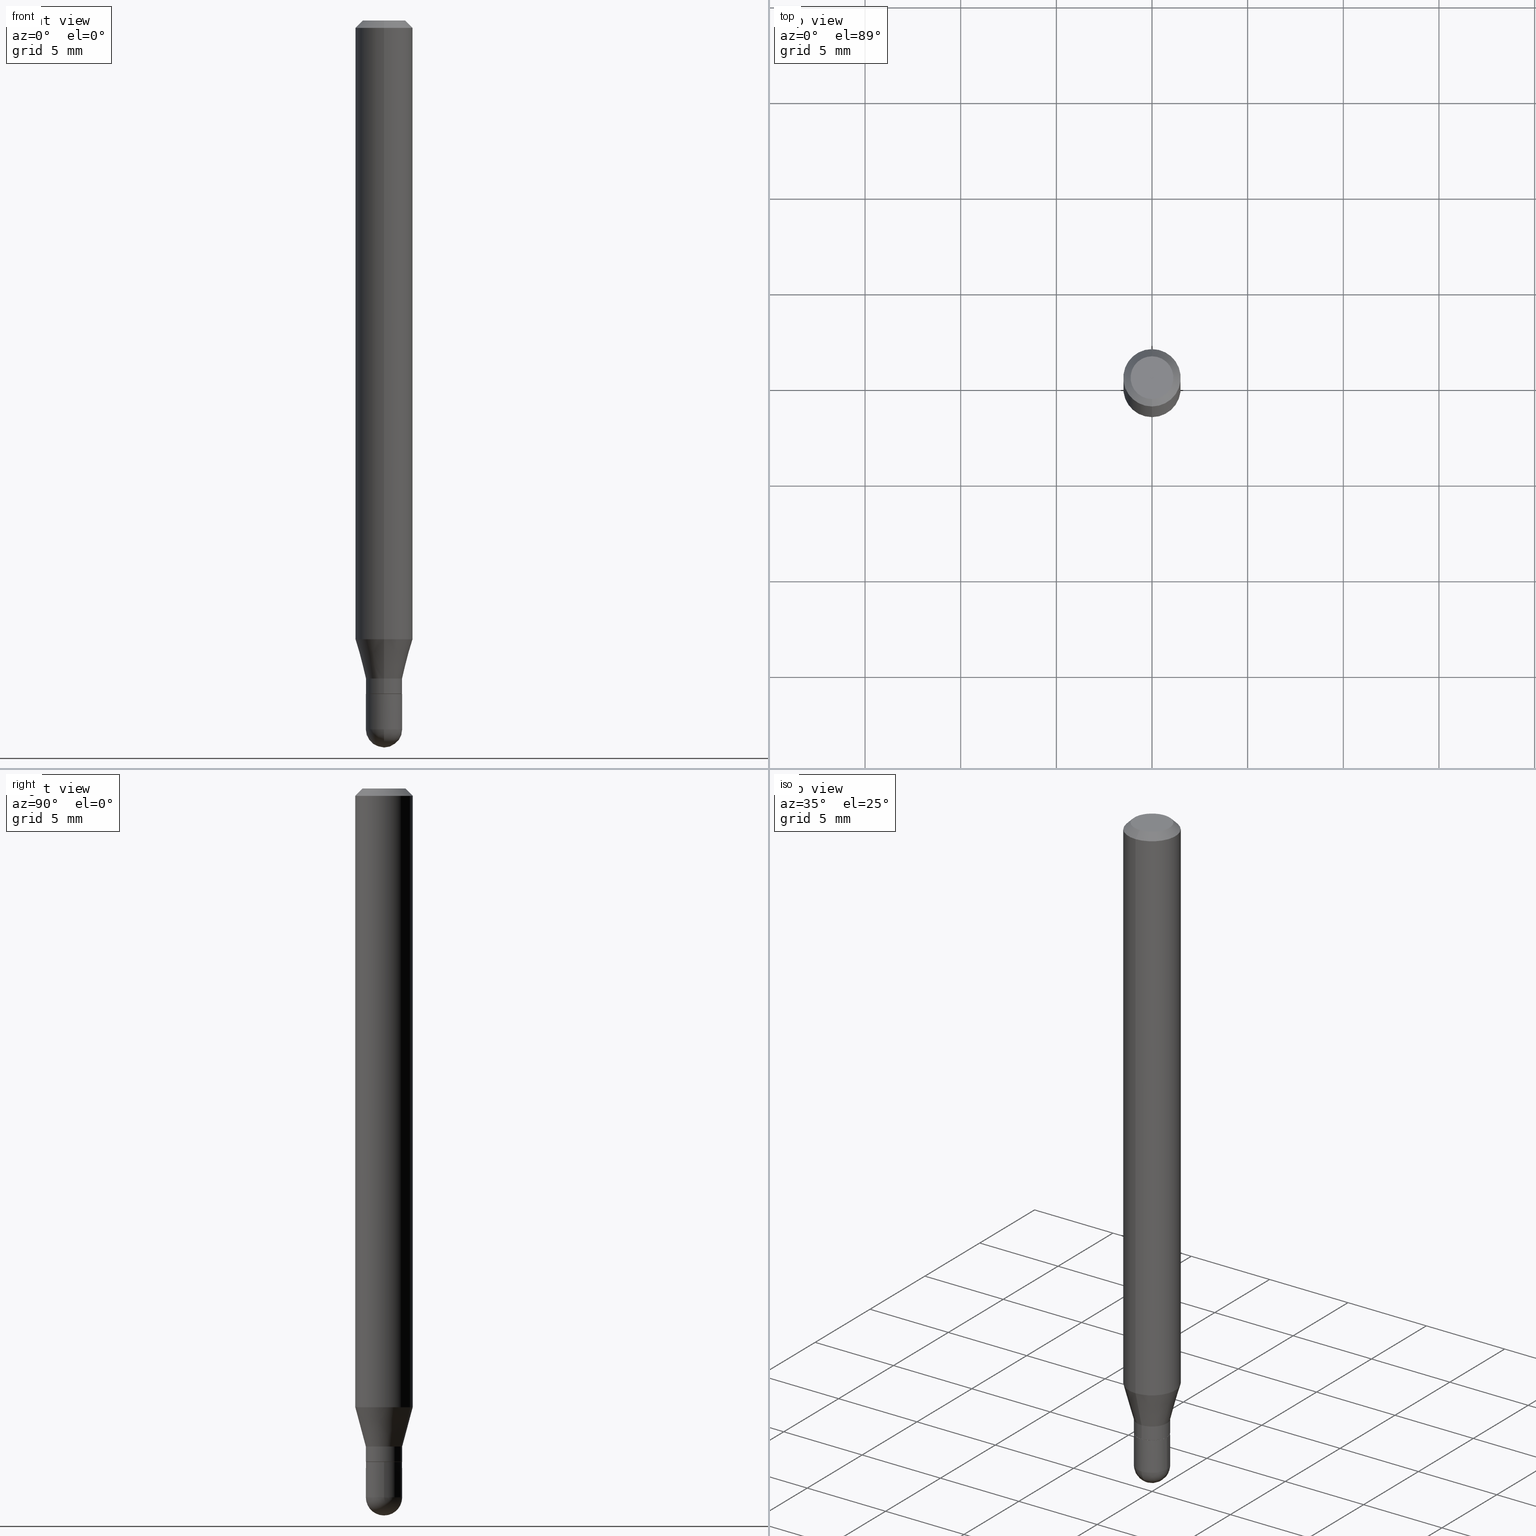
[diagram: canonical four-view strip — front | top / right | iso, engineering-drawing reading convention]
A machine part, canonical four-view strip (front | top / right | iso — engineering-drawing reading convention). The complete STEP part file that produces these views, byte-faithful:
ISO-10303-21;
HEADER;
FILE_DESCRIPTION (( 'STEP AP203' ),
    '1' );
FILE_NAME ('01936.STEP',
    '2024-03-07T19:46:04',
    ( '' ),
    ( '' ),
    'SwSTEP 2.0',
    'SolidWorks 2023',
    '' );
FILE_SCHEMA (( 'CONFIG_CONTROL_DESIGN' ));
ENDSEC;

DATA;
#1 = LINE ( 'NONE', #42, #32 ) ;
#2 = CC_DESIGN_PERSON_AND_ORGANIZATION_ASSIGNMENT ( #278, #426, ( #113 ) ) ;
#3 = DIRECTION ( 'NONE',  ( -2.445517740109687553E-29, 3.491411262678042591E-15, 1.000000000000000000 ) ) ;
#4 = CLOSED_SHELL ( 'NONE', ( #178, #386, #133, #410, #415 ) ) ;
#5 = CARTESIAN_POINT ( 'NONE',  ( 3.668276610164536795E-31, -5.237116894017072934E-17, -0.01500000000000002373 ) ) ;
#6 = CIRCLE ( 'NONE', #173, 0.03740000000000000269 ) ;
#7 = ORIENTED_EDGE ( 'NONE', *, *, #140, .F. ) ;
#8 = DIRECTION ( 'NONE',  ( -2.445517740109687273E-29, 3.491411262678042985E-15, 1.000000000000000000 ) ) ;
#9 = ORIENTED_EDGE ( 'NONE', *, *, #107, .F. ) ;
#10 = EDGE_LOOP ( 'NONE', ( #7, #200, #172, #66 ) ) ;
#11 = LINE ( 'NONE', #481, #349 ) ;
#12 = APPROVAL_DATE_TIME ( #194, #466 ) ;
#13 = ORIENTED_EDGE ( 'NONE', *, *, #463, .F. ) ;
#14 = ADVANCED_FACE ( 'NONE', ( #384 ), #387, .T. ) ;
#15 = VERTEX_POINT ( 'NONE', #29 ) ;
#16 = EDGE_CURVE ( 'NONE', #126, #35, #492, .T. ) ;
#17 = DATE_AND_TIME ( #309, #256 ) ;
#18 = ORIENTED_EDGE ( 'NONE', *, *, #209, .F. ) ;
#19 = DIRECTION ( 'NONE',  ( -2.445517740109687553E-29, 3.491411262678042591E-15, 1.000000000000000000 ) ) ;
#20 = CARTESIAN_POINT ( 'NONE',  ( 3.564007025660728008E-29, -5.097604007999306661E-15, -1.458699999999999886 ) ) ;
#21 = MANIFOLD_SOLID_BREP ( 'Body-Move/Copy2[2]', #182 ) ;
#22 = AXIS2_PLACEMENT_3D ( 'NONE', #208, #114, #398 ) ;
#23 = AXIS2_PLACEMENT_3D ( 'NONE', #414, #479, #167 ) ;
#24 = PLANE ( 'NONE',  #488 ) ;
#25 = PERSON_AND_ORGANIZATION ( #189, #411 ) ;
#26 = DIRECTION ( 'NONE',  ( -2.445517740109687553E-29, 3.491411262678042591E-15, 1.000000000000000000 ) ) ;
#27 = EDGE_CURVE ( 'NONE', #333, #447, #417, .T. ) ;
#28 = CARTESIAN_POINT ( 'NONE',  ( 3.311475571882527521E-29, -4.727719990792336860E-15, -1.354099999999999859 ) ) ;
#29 = CARTESIAN_POINT ( 'NONE',  ( -4.123439461173736383E-16, -0.05905000000000005383, -0.01499999999999981730 ) ) ;
#30 = EDGE_LOOP ( 'NONE', ( #49, #123, #116, #90 ) ) ;
#31 = CARTESIAN_POINT ( 'NONE',  ( 2.621902694955108069E-16, 0.03689999999999515889, -1.385899999999999910 ) ) ;
#32 = VECTOR ( 'NONE', #82, 39.37007874015748143 ) ;
#33 =( GEOMETRIC_REPRESENTATION_CONTEXT ( 3 ) GLOBAL_UNCERTAINTY_ASSIGNED_CONTEXT ( ( #121 ) ) GLOBAL_UNIT_ASSIGNED_CONTEXT ( ( #287, #170, #404 ) ) REPRESENTATION_CONTEXT ( 'NONE', 'WORKASPACE' ) );
#34 = EDGE_CURVE ( 'NONE', #73, #89, #192, .T. ) ;
#35 = VERTEX_POINT ( 'NONE', #143 ) ;
#36 = CARTESIAN_POINT ( 'NONE',  ( 2.611628041455002226E-16, 0.03739999999999515934, -1.385899999999999910 ) ) ;
#37 = ORIENTED_EDGE ( 'NONE', *, *, #152, .T. ) ;
#38 = CARTESIAN_POINT ( 'NONE',  ( -2.611628041454328736E-16, -0.03740000000000489461, -1.385399999999999965 ) ) ;
#39 = EDGE_CURVE ( 'NONE', #126, #268, #501, .T. ) ;
#40 = CARTESIAN_POINT ( 'NONE',  ( 0.000000000000000000, 0.000000000000000000, 0.000000000000000000 ) ) ;
#41 = EDGE_CURVE ( 'NONE', #263, #89, #394, .T. ) ;
#42 = CARTESIAN_POINT ( 'NONE',  ( -4.123439461173739834E-16, -0.05904999999999999832, 2.061678350611384219E-16 ) ) ;
#43 = DIRECTION ( 'NONE',  ( -6.982962677686265133E-15, -1.000000000000000000, 0.000000000000000000 ) ) ;
#44 = VERTEX_POINT ( 'NONE', #428 ) ;
#45 = DIRECTION ( 'NONE',  ( -6.982962677686265133E-15, -1.000000000000000000, 0.000000000000000000 ) ) ;
#46 = APPROVAL ( #233, 'UNSPECIFIED' ) ;
#47 = CIRCLE ( 'NONE', #510, 0.03739999999999999575 ) ;
#48 = CARTESIAN_POINT ( 'NONE',  ( -0.03740000000000000269, -4.700190925062328088E-15, -1.385899999999999910 ) ) ;
#49 = ORIENTED_EDGE ( 'NONE', *, *, #34, .F. ) ;
#50 = COORDINATED_UNIVERSAL_TIME_OFFSET ( 5, 0, .BEHIND. ) ;
#51 = VECTOR ( 'NONE', #330, 39.37007874015748143 ) ;
#52 = CIRCLE ( 'NONE', #502, 0.03739999999999986391 ) ;
#53 = EDGE_CURVE ( 'NONE', #455, #276, #99, .T. ) ;
#54 = EDGE_LOOP ( 'NONE', ( #235, #150, #449, #224 ) ) ;
#55 = DESIGN_CONTEXT ( 'detailed design', #199, 'design' ) ;
#56 = SHAPE_DEFINITION_REPRESENTATION ( #373, #149 ) ;
#57 = ORIENTED_EDGE ( 'NONE', *, *, #16, .F. ) ;
#58 = DIRECTION ( 'NONE',  ( 1.000000000000000000, -6.982962677686274599E-15, 0.000000000000000000 ) ) ;
#59 = CALENDAR_DATE ( 2024, 7, 3 ) ;
#60 = DIRECTION ( 'NONE',  ( -2.445517740109687553E-29, 3.491411262678042591E-15, 1.000000000000000000 ) ) ;
#61 = ADVANCED_FACE ( 'NONE', ( #234 ), #458, .T. ) ;
#62 = CARTESIAN_POINT ( 'NONE',  ( 3.389243036018016128E-29, -4.838746868945498624E-15, -1.385899999999999910 ) ) ;
#63 = AXIS2_PLACEMENT_3D ( 'NONE', #153, #106, #279 ) ;
#64 = ORIENTED_EDGE ( 'NONE', *, *, #41, .F. ) ;
#65 = PERSON_AND_ORGANIZATION_ROLE ( 'design_owner' ) ;
#66 = ORIENTED_EDGE ( 'NONE', *, *, #76, .T. ) ;
#67 = APPLICATION_PROTOCOL_DEFINITION ( 'international standard', 'config_control_design', 1994, #199 ) ;
#68 = CARTESIAN_POINT ( 'NONE',  ( 3.567205347582258439E-29, -5.093023828970496460E-15, -1.458699999999999886 ) ) ;
#69 = ORIENTED_EDGE ( 'NONE', *, *, #250, .F. ) ;
#70 = CARTESIAN_POINT ( 'NONE',  ( 0.000000000000000000, 0.000000000000000000, 0.000000000000000000 ) ) ;
#71 = CARTESIAN_POINT ( 'NONE',  ( 2.657429831743100291E-16, 0.03739999999999519403, -1.354099999999999859 ) ) ;
#72 = AXIS2_PLACEMENT_3D ( 'NONE', #5, #251, #437 ) ;
#73 = VERTEX_POINT ( 'NONE', #314 ) ;
#74 = DIRECTION ( 'NONE',  ( -2.445517740109686993E-29, 3.491411262678042985E-15, 1.000000000000000000 ) ) ;
#75 = CARTESIAN_POINT ( 'NONE',  ( 3.599717260347271507E-16, 0.04404999999999999888, -1.776619958574267450E-16 ) ) ;
#76 = EDGE_CURVE ( 'NONE', #299, #15, #117, .T. ) ;
#77 = CARTESIAN_POINT ( 'NONE',  ( 3.113880428590634668E-29, -4.445617801376670598E-15, -1.273301100016133836 ) ) ;
#78 = CONICAL_SURFACE ( 'NONE', #221, 0.03690000000000000224, 0.7853981633974739252 ) ;
#79 = CONICAL_SURFACE ( 'NONE', #223, 0.03739999999999992636, 0.2617993877991506846 ) ;
#80 = LINE ( 'NONE', #206, #320 ) ;
#81 = EDGE_CURVE ( 'NONE', #215, #44, #306, .T. ) ;
#82 = DIRECTION ( 'NONE',  ( -2.445517740109687273E-29, 3.491411262678042985E-15, 1.000000000000000000 ) ) ;
#83 = EDGE_CURVE ( 'NONE', #333, #455, #355, .T. ) ;
#84 = CARTESIAN_POINT ( 'NONE',  ( 4.123439461173743285E-16, 0.05904999999999994975, -0.01500000000000023016 ) ) ;
#85 = DIRECTION ( 'NONE',  ( 1.000000000000000000, -6.982962677686265922E-15, 4.883557194083112901E-29 ) ) ;
#86 = AXIS2_PLACEMENT_3D ( 'NONE', #40, #243, #476 ) ;
#87 = ORIENTED_EDGE ( 'NONE', *, *, #152, .F. ) ;
#88 = ORIENTED_EDGE ( 'NONE', *, *, #76, .F. ) ;
#89 = VERTEX_POINT ( 'NONE', #101 ) ;
#90 = ORIENTED_EDGE ( 'NONE', *, *, #171, .F. ) ;
#91 = EDGE_LOOP ( 'NONE', ( #469, #374, #135, #69 ) ) ;
#92 = DIRECTION ( 'NONE',  ( -2.445517740109687553E-29, 3.491411262678042591E-15, 1.000000000000000000 ) ) ;
#93 = CALENDAR_DATE ( 2024, 7, 3 ) ;
#94 = SECURITY_CLASSIFICATION ( '', '', #382 ) ;
#95 = ORIENTED_EDGE ( 'NONE', *, *, #405, .T. ) ;
#96 = CARTESIAN_POINT ( 'NONE',  ( 3.311475571882527521E-29, -4.727719990792336860E-15, -1.354099999999999859 ) ) ;
#97 = DATE_AND_TIME ( #59, #112 ) ;
#98 = CYLINDRICAL_SURFACE ( 'NONE', #462, 0.03739999999999992636 ) ;
#99 = LINE ( 'NONE', #71, #282 ) ;
#100 = ADVANCED_FACE ( 'NONE', ( #495 ), #24, .F. ) ;
#101 = CARTESIAN_POINT ( 'NONE',  ( 2.657429831743098319E-16, 0.03739999999999495811, -1.385399999999999965 ) ) ;
#102 = CIRCLE ( 'NONE', #236, 0.03739999999999992636 ) ;
#103 = DIRECTION ( 'NONE',  ( 6.982962677686265922E-15, 1.000000000000000000, -3.491411262678042985E-15 ) ) ;
#104 = DIRECTION ( 'NONE',  ( -6.982962677686265133E-15, -1.000000000000000000, 0.000000000000000000 ) ) ;
#105 = ORIENTED_EDGE ( 'NONE', *, *, #16, .T. ) ;
#106 = DIRECTION ( 'NONE',  ( -2.445517740109687553E-29, 3.491411262678042591E-15, 1.000000000000000000 ) ) ;
#107 = EDGE_CURVE ( 'NONE', #447, #276, #381, .T. ) ;
#108 = EDGE_LOOP ( 'NONE', ( #453, #348, #365, #419 ) ) ;
#109 = CARTESIAN_POINT ( 'NONE',  ( 3.388020277147960670E-29, -4.837001163314160163E-15, -1.385399999999999965 ) ) ;
#110 = ORIENTED_EDGE ( 'NONE', *, *, #209, .T. ) ;
#111 = VECTOR ( 'NONE', #508, 39.37007874015748143 ) ;
#112 = LOCAL_TIME ( 14, 46, 4.000000000000000000, #190 ) ;
#113 = PRODUCT_DEFINITION ( 'UNKNOWN', '', #197, #55 ) ;
#114 = DIRECTION ( 'NONE',  ( -2.445517740109687553E-29, 3.491411262678042591E-15, 1.000000000000000000 ) ) ;
#115 = CYLINDRICAL_SURFACE ( 'NONE', #22, 0.03739999999999992636 ) ;
#116 = ORIENTED_EDGE ( 'NONE', *, *, #496, .T. ) ;
#117 = CIRCLE ( 'NONE', #205, 0.05904999999999999832 ) ;
#118 = CIRCLE ( 'NONE', #395, 0.03739999999999999575 ) ;
#119 = FACE_OUTER_BOUND ( 'NONE', #30, .T. ) ;
#120 = EDGE_CURVE ( 'NONE', #422, #268, #334, .T. ) ;
#121 = UNCERTAINTY_MEASURE_WITH_UNIT (LENGTH_MEASURE( 1.000000000000000082E-05 ), #287, 'distance_accuracy_value', 'NONE');
#122 = CARTESIAN_POINT ( 'NONE',  ( 0.03739999999999999575, -5.227096712382071878E-15, -1.458699999999999886 ) ) ;
#123 = ORIENTED_EDGE ( 'NONE', *, *, #463, .T. ) ;
#124 = CARTESIAN_POINT ( 'NONE',  ( 4.195754854663390985E-16, 0.05904999999999999832, -2.061678350611384219E-16 ) ) ;
#125 = CALENDAR_DATE ( 2024, 7, 3 ) ;
#126 = VERTEX_POINT ( 'NONE', #122 ) ;
#127 = CARTESIAN_POINT ( 'NONE',  ( 3.389243036018016128E-29, -4.838746868945498624E-15, -1.385899999999999910 ) ) ;
#128 = ORIENTED_EDGE ( 'NONE', *, *, #81, .T. ) ;
#129 = DIRECTION ( 'NONE',  ( -6.982962677686265133E-15, -1.000000000000000000, 0.000000000000000000 ) ) ;
#130 = APPROVAL_PERSON_ORGANIZATION ( #134, #274, #367 ) ;
#131 = ORIENTED_EDGE ( 'NONE', *, *, #27, .T. ) ;
#132 = DIRECTION ( 'NONE',  ( -2.445517740109687273E-29, 3.491411262678042985E-15, 1.000000000000000000 ) ) ;
#133 = ADVANCED_FACE ( 'NONE', ( #439 ), #389, .F. ) ;
#134 = PERSON_AND_ORGANIZATION ( #189, #411 ) ;
#135 = ORIENTED_EDGE ( 'NONE', *, *, #39, .F. ) ;
#136 = SPHERICAL_SURFACE ( 'NONE', #288, 0.03739999999999986391 ) ;
#137 = APPROVAL_STATUS ( 'not_yet_approved' ) ;
#138 = FACE_OUTER_BOUND ( 'NONE', #409, .T. ) ;
#139 = AXIS2_PLACEMENT_3D ( 'NONE', #169, #85, #341 ) ;
#140 = EDGE_CURVE ( 'NONE', #44, #15, #11, .T. ) ;
#141 = DIRECTION ( 'NONE',  ( -2.445517740109687553E-29, 3.491411262678042591E-15, 1.000000000000000000 ) ) ;
#142 = LINE ( 'NONE', #303, #363 ) ;
#143 = CARTESIAN_POINT ( 'NONE',  ( 0.03740000000000000269, -5.100006791648181685E-15, -1.385899999999999910 ) ) ;
#144 = COORDINATED_UNIVERSAL_TIME_OFFSET ( 5, 0, .BEHIND. ) ;
#145 = CARTESIAN_POINT ( 'NONE',  ( -0.03739999999999999575, -4.700190925062328088E-15, -1.458699999999999886 ) ) ;
#146 = ORIENTED_EDGE ( 'NONE', *, *, #207, .T. ) ;
#147 = DIRECTION ( 'NONE',  ( -6.982962677686265922E-15, -1.000000000000000000, 3.491411262678042985E-15 ) ) ;
#148 = VECTOR ( 'NONE', #385, 39.37007874015748143 ) ;
#149 = ADVANCED_BREP_SHAPE_REPRESENTATION ( '01936', ( #379, #21, #23 ), #33 ) ;
#150 = ORIENTED_EDGE ( 'NONE', *, *, #377, .T. ) ;
#151 = ORIENTED_EDGE ( 'NONE', *, *, #39, .T. ) ;
#152 = EDGE_CURVE ( 'NONE', #470, #369, #316, .T. ) ;
#153 = CARTESIAN_POINT ( 'NONE',  ( 3.113880428590634668E-29, -4.445617801376670598E-15, -1.273301100016133836 ) ) ;
#154 = CARTESIAN_POINT ( 'NONE',  ( 0.03739999999999999575, -2.611628041454663509E-16, 1.823690114147680082E-30 ) ) ;
#155 = ORIENTED_EDGE ( 'NONE', *, *, #140, .T. ) ;
#156 = CARTESIAN_POINT ( 'NONE',  ( -0.03739999999999999575, 2.657429831742774393E-16, -1.839681723755334690E-30 ) ) ;
#157 =( LENGTH_UNIT ( ) NAMED_UNIT ( * ) SI_UNIT ( $, .METRE. ) );
#158 = CIRCLE ( 'NONE', #482, 0.05904999999999999832 ) ;
#159 = AXIS2_PLACEMENT_3D ( 'NONE', #427, #26, #237 ) ;
#160 = DIRECTION ( 'NONE',  ( -6.982962677686265922E-15, -1.000000000000000000, 3.505890868245046092E-15 ) ) ;
#161 = DIRECTION ( 'NONE',  ( -2.445517740109687553E-29, 3.491411262678042591E-15, 1.000000000000000000 ) ) ;
#162 = DIRECTION ( 'NONE',  ( -6.982962677686265133E-15, -1.000000000000000000, 0.000000000000000000 ) ) ;
#163 = DIRECTION ( 'NONE',  ( -2.445468806185136597E-29, 3.491481338843145583E-15, 1.000000000000000000 ) ) ;
#164 = AXIS2_PLACEMENT_3D ( 'NONE', #28, #60, #380 ) ;
#165 = CARTESIAN_POINT ( 'NONE',  ( 4.195754854663699134E-16, 0.05904999999999551580, -1.273301100016134058 ) ) ;
#166 = CARTESIAN_POINT ( 'NONE',  ( 3.389243036018016128E-29, -4.838746868945498624E-15, -1.385899999999999910 ) ) ;
#167 = DIRECTION ( 'NONE',  ( 1.000000000000000000, 0.000000000000000000, 0.000000000000000000 ) ) ;
#168 = VERTEX_POINT ( 'NONE', #361 ) ;
#169 = CARTESIAN_POINT ( 'NONE',  ( 3.564007025660728008E-29, -5.097604007999306661E-15, -1.458699999999999886 ) ) ;
#170 =( NAMED_UNIT ( * ) PLANE_ANGLE_UNIT ( ) SI_UNIT ( $, .RADIAN. ) );
#171 = EDGE_CURVE ( 'NONE', #89, #263, #102, .T. ) ;
#172 = ORIENTED_EDGE ( 'NONE', *, *, #280, .T. ) ;
#173 = AXIS2_PLACEMENT_3D ( 'NONE', #441, #181, #58 ) ;
#174 = AXIS2_PLACEMENT_3D ( 'NONE', #375, #19, #147 ) ;
#175 = ADVANCED_FACE ( 'NONE', ( #511 ), #115, .T. ) ;
#176 = ORIENTED_EDGE ( 'NONE', *, *, #229, .F. ) ;
#177 = DIMENSIONAL_EXPONENTS ( 1.000000000000000000, 0.000000000000000000, 0.000000000000000000, 0.000000000000000000, 0.000000000000000000, 0.000000000000000000, 0.000000000000000000 ) ;
#178 = ADVANCED_FACE ( 'NONE', ( #285 ), #354, .T. ) ;
#179 = ORIENTED_EDGE ( 'NONE', *, *, #305, .F. ) ;
#180 = DIRECTION ( 'NONE',  ( -2.445517740109687553E-29, 3.491411262678042591E-15, 1.000000000000000000 ) ) ;
#181 = DIRECTION ( 'NONE',  ( -2.445468806185136597E-29, 3.491481338843145583E-15, 1.000000000000000000 ) ) ;
#182 = CLOSED_SHELL ( 'NONE', ( #446, #438, #258, #61, #328, #435, #238, #14, #100, #301, #245, #175 ) ) ;
#183 = AXIS2_PLACEMENT_3D ( 'NONE', #423, #500, #317 ) ;
#184 = VECTOR ( 'NONE', #244, 39.37007874015748143 ) ;
#185 = PERSON_AND_ORGANIZATION_ROLE ( 'classification_officer' ) ;
#186 = APPROVAL_ROLE ( '' ) ;
#187 = LINE ( 'NONE', #345, #184 ) ;
#188 = DIRECTION ( 'NONE',  ( 2.445517740109686993E-29, -3.491411262678042985E-15, -1.000000000000000000 ) ) ;
#189 = PERSON ( 'UNSPECIFIED', 'UNSPECIFIED', 'UNSPECIFIED', ('UNSPECIFIED'), ('UNSPECIFIED'), ('UNSPECIFIED') ) ;
#190 = COORDINATED_UNIVERSAL_TIME_OFFSET ( 5, 0, .BEHIND. ) ;
#191 = PERSON_AND_ORGANIZATION ( #189, #411 ) ;
#192 = LINE ( 'NONE', #31, #467 ) ;
#193 = EDGE_LOOP ( 'NONE', ( #499, #489, #146, #179 ) ) ;
#194 = DATE_AND_TIME ( #125, #230 ) ;
#195 = AXIS2_PLACEMENT_3D ( 'NONE', #77, #397, #392 ) ;
#196 = CARTESIAN_POINT ( 'NONE',  ( 3.564007025660728008E-29, -5.097604007999306661E-15, -1.458699999999999886 ) ) ;
#197 = PRODUCT_DEFINITION_FORMATION_WITH_SPECIFIED_SOURCE ( 'ANY', '', #434, .NOT_KNOWN. ) ;
#198 = DIRECTION ( 'NONE',  ( -2.445517740109687553E-29, 3.491411262678042591E-15, 1.000000000000000000 ) ) ;
#199 = APPLICATION_CONTEXT ( 'configuration controlled 3d designs of mechanical parts and assemblies' ) ;
#200 = ORIENTED_EDGE ( 'NONE', *, *, #81, .F. ) ;
#201 = DIRECTION ( 'NONE',  ( 2.438088387897960049E-29, -3.491481338843145188E-15, -1.000000000000000000 ) ) ;
#202 = CC_DESIGN_PERSON_AND_ORGANIZATION_ASSIGNMENT ( #25, #185, ( #94 ) ) ;
#203 = DIRECTION ( 'NONE',  ( 1.000000000000000000, -6.982962677686276177E-15, 0.000000000000000000 ) ) ;
#204 = DIRECTION ( 'NONE',  ( -2.445468806185136597E-29, 3.491481338843145583E-15, 1.000000000000000000 ) ) ;
#205 = AXIS2_PLACEMENT_3D ( 'NONE', #491, #180, #339 ) ;
#206 = CARTESIAN_POINT ( 'NONE',  ( -2.611628041454658086E-16, -0.03739999999999992636, 1.305787812241585352E-16 ) ) ;
#207 = EDGE_CURVE ( 'NONE', #263, #333, #80, .T. ) ;
#208 = CARTESIAN_POINT ( 'NONE',  ( 0.000000000000000000, 0.000000000000000000, 0.000000000000000000 ) ) ;
#209 = EDGE_CURVE ( 'NONE', #276, #299, #396, .T. ) ;
#210 = DIRECTION ( 'NONE',  ( -2.445468806185136597E-29, 3.491481338843145583E-15, 1.000000000000000000 ) ) ;
#211 = EDGE_LOOP ( 'NONE', ( #95, #37, #503, #57, #151 ) ) ;
#212 = AXIS2_PLACEMENT_3D ( 'NONE', #430, #204, #293 ) ;
#213 = APPROVAL_PERSON_ORGANIZATION ( #228, #46, #186 ) ;
#214 = CARTESIAN_POINT ( 'NONE',  ( 2.657429831743125929E-16, 0.03739999999999483321, -1.458699999999999886 ) ) ;
#215 = VERTEX_POINT ( 'NONE', #75 ) ;
#216 = DIRECTION ( 'NONE',  ( -6.982962677686265922E-15, -1.000000000000000000, 0.000000000000000000 ) ) ;
#217 = EDGE_CURVE ( 'NONE', #447, #15, #1, .T. ) ;
#218 = ORIENTED_EDGE ( 'NONE', *, *, #507, .T. ) ;
#219 = DATE_TIME_ROLE ( 'classification_date' ) ;
#220 = EDGE_LOOP ( 'NONE', ( #239, #259, #131, #252 ) ) ;
#221 = AXIS2_PLACEMENT_3D ( 'NONE', #295, #358, #162 ) ;
#222 = SPHERICAL_SURFACE ( 'NONE', #139, 0.03739999999999986391 ) ;
#223 = AXIS2_PLACEMENT_3D ( 'NONE', #96, #92, #307 ) ;
#224 = ORIENTED_EDGE ( 'NONE', *, *, #207, .F. ) ;
#225 = EDGE_CURVE ( 'NONE', #369, #35, #408, .T. ) ;
#226 = FACE_OUTER_BOUND ( 'NONE', #403, .T. ) ;
#227 = DIRECTION ( 'NONE',  ( -2.445517740109687553E-29, 3.491411262678042591E-15, 1.000000000000000000 ) ) ;
#228 = PERSON_AND_ORGANIZATION ( #189, #411 ) ;
#229 = EDGE_CURVE ( 'NONE', #15, #299, #158, .T. ) ;
#230 = LOCAL_TIME ( 14, 46, 4.000000000000000000, #242 ) ;
#231 = PRODUCT_RELATED_PRODUCT_CATEGORY ( 'detail', '', ( #434 ) ) ;
#232 = DIRECTION ( 'NONE',  ( 1.839019923739603076E-15, 0.2588190451025253469, 0.9659258262890670910 ) ) ;
#233 = APPROVAL_STATUS ( 'not_yet_approved' ) ;
#234 = FACE_OUTER_BOUND ( 'NONE', #505, .T. ) ;
#235 = ORIENTED_EDGE ( 'NONE', *, *, #41, .T. ) ;
#236 = AXIS2_PLACEMENT_3D ( 'NONE', #432, #468, #43 ) ;
#237 = DIRECTION ( 'NONE',  ( -6.982962677686265133E-15, -1.000000000000000000, 3.491411262678042985E-15 ) ) ;
#238 = ADVANCED_FACE ( 'NONE', ( #471 ), #327, .T. ) ;
#239 = ORIENTED_EDGE ( 'NONE', *, *, #53, .F. ) ;
#240 = CARTESIAN_POINT ( 'NONE',  ( 3.567205347582258439E-29, -5.093023828970496460E-15, -1.458699999999999886 ) ) ;
#241 = DIRECTION ( 'NONE',  ( -6.982962677686265922E-15, -1.000000000000000000, 3.491411262678042985E-15 ) ) ;
#242 = COORDINATED_UNIVERSAL_TIME_OFFSET ( 5, 0, .BEHIND. ) ;
#243 = DIRECTION ( 'NONE',  ( -2.445517740109687553E-29, 3.491411262678042591E-15, 1.000000000000000000 ) ) ;
#244 = DIRECTION ( 'NONE',  ( -4.937700262164674260E-15, -0.7071067811865632269, 0.7071067811865319186 ) ) ;
#245 = ADVANCED_FACE ( 'NONE', ( #119 ), #78, .T. ) ;
#246 = AXIS2_PLACEMENT_3D ( 'NONE', #390, #161, #484 ) ;
#247 = DIRECTION ( 'NONE',  ( 1.000000000000000000, -7.105427357601001070E-15, 4.926315508542082329E-29 ) ) ;
#248 = CC_DESIGN_SECURITY_CLASSIFICATION ( #94, ( #197 ) ) ;
#249 = DIRECTION ( 'NONE',  ( 1.000000000000000000, -6.982962677686274599E-15, 0.000000000000000000 ) ) ;
#250 = EDGE_CURVE ( 'NONE', #402, #126, #47, .T. ) ;
#251 = DIRECTION ( 'NONE',  ( 2.445517740109687553E-29, -3.491411262678042591E-15, -1.000000000000000000 ) ) ;
#252 = ORIENTED_EDGE ( 'NONE', *, *, #473, .F. ) ;
#253 = FACE_OUTER_BOUND ( 'NONE', #424, .T. ) ;
#254 = EDGE_LOOP ( 'NONE', ( #457, #506 ) ) ;
#255 = AXIS2_PLACEMENT_3D ( 'NONE', #474, #247, #359 ) ;
#256 = LOCAL_TIME ( 14, 46, 4.000000000000000000, #144 ) ;
#257 = DIRECTION ( 'NONE',  ( 1.000000000000000000, -6.982962677686276177E-15, 0.000000000000000000 ) ) ;
#258 = ADVANCED_FACE ( 'NONE', ( #321 ), #264, .T. ) ;
#259 = ORIENTED_EDGE ( 'NONE', *, *, #305, .T. ) ;
#260 = ORIENTED_EDGE ( 'NONE', *, *, #262, .F. ) ;
#261 = CARTESIAN_POINT ( 'NONE',  ( 0.000000000000000000, 0.000000000000000000, 0.000000000000000000 ) ) ;
#262 = EDGE_CURVE ( 'NONE', #168, #73, #275, .T. ) ;
#263 = VERTEX_POINT ( 'NONE', #38 ) ;
#264 = CONICAL_SURFACE ( 'NONE', #72, 0.05904999999999999832, 0.7853981633974483900 ) ;
#265 = CARTESIAN_POINT ( 'NONE',  ( 3.389243036018016128E-29, -4.838746868945498624E-15, -1.385899999999999910 ) ) ;
#266 = AXIS2_PLACEMENT_3D ( 'NONE', #265, #227, #376 ) ;
#267 = DATE_AND_TIME ( #93, #388 ) ;
#268 = VERTEX_POINT ( 'NONE', #214 ) ;
#269 = FACE_OUTER_BOUND ( 'NONE', #343, .T. ) ;
#270 = CARTESIAN_POINT ( 'NONE',  ( 5.836308724407766617E-46, -8.332368102939804425E-32, -2.386532973645896929E-17 ) ) ;
#271 = FACE_OUTER_BOUND ( 'NONE', #54, .T. ) ;
#272 = CARTESIAN_POINT ( 'NONE',  ( -4.123439461173431685E-16, -0.05905000000000448085, -1.273301100016133613 ) ) ;
#273 = CARTESIAN_POINT ( 'NONE',  ( 3.075995059520799729E-16, 0.04404999999999999888, -1.657293309891972650E-16 ) ) ;
#274 = APPROVAL ( #137, 'UNSPECIFIED' ) ;
#275 = CIRCLE ( 'NONE', #368, 0.03690000000000000224 ) ;
#276 = VERTEX_POINT ( 'NONE', #165 ) ;
#277 = ORIENTED_EDGE ( 'NONE', *, *, #262, .T. ) ;
#278 = PERSON_AND_ORGANIZATION ( #189, #411 ) ;
#279 = DIRECTION ( 'NONE',  ( -6.982962677686265922E-15, -1.000000000000000000, 4.626330217890369336E-15 ) ) ;
#280 = EDGE_CURVE ( 'NONE', #215, #299, #440, .T. ) ;
#281 = DIRECTION ( 'NONE',  ( -6.982962677686265133E-15, -1.000000000000000000, 0.000000000000000000 ) ) ;
#282 = VECTOR ( 'NONE', #232, 39.37007874015748143 ) ;
#283 = AXIS2_PLACEMENT_3D ( 'NONE', #62, #383, #504 ) ;
#284 = APPLICATION_CONTEXT ( 'configuration controlled 3d designs of mechanical parts and assemblies' ) ;
#285 = FACE_OUTER_BOUND ( 'NONE', #211, .T. ) ;
#286 = DIRECTION ( 'NONE',  ( -2.445468806185136597E-29, 3.491481338843145583E-15, 1.000000000000000000 ) ) ;
#287 =( CONVERSION_BASED_UNIT ( 'INCH', #431 ) LENGTH_UNIT ( ) NAMED_UNIT ( #177 ) );
#288 = AXIS2_PLACEMENT_3D ( 'NONE', #20, #450, #216 ) ;
#289 = DIRECTION ( 'NONE',  ( 1.000000000000000000, -6.982962677686276177E-15, 0.000000000000000000 ) ) ;
#290 = PERSON_AND_ORGANIZATION ( #189, #411 ) ;
#291 = ORIENTED_EDGE ( 'NONE', *, *, #34, .T. ) ;
#292 = ORIENTED_EDGE ( 'NONE', *, *, #27, .F. ) ;
#293 = DIRECTION ( 'NONE',  ( 1.000000000000000000, -6.982962677686266711E-15, 4.876176775795936353E-29 ) ) ;
#294 = CC_DESIGN_PERSON_AND_ORGANIZATION_ASSIGNMENT ( #290, #344, ( #197 ) ) ;
#295 = CARTESIAN_POINT ( 'NONE',  ( 3.389243036018016128E-29, -4.838746868945498624E-15, -1.385899999999999910 ) ) ;
#296 = ORIENTED_EDGE ( 'NONE', *, *, #107, .T. ) ;
#297 = CIRCLE ( 'NONE', #246, 0.03739999999999992636 ) ;
#298 = DIRECTION ( 'NONE',  ( -2.445468806185136597E-29, 3.491481338843145583E-15, 1.000000000000000000 ) ) ;
#299 = VERTEX_POINT ( 'NONE', #478 ) ;
#300 = FACE_OUTER_BOUND ( 'NONE', #108, .T. ) ;
#301 = ADVANCED_FACE ( 'NONE', ( #253 ), #393, .F. ) ;
#302 = ORIENTED_EDGE ( 'NONE', *, *, #473, .T. ) ;
#303 = CARTESIAN_POINT ( 'NONE',  ( 2.657429831742768970E-16, 0.03739999999999992636, -1.305787812241585352E-16 ) ) ;
#304 = COORDINATED_UNIVERSAL_TIME_OFFSET ( 5, 0, .BEHIND. ) ;
#305 = EDGE_CURVE ( 'NONE', #455, #333, #297, .T. ) ;
#306 = CIRCLE ( 'NONE', #401, 0.04404999999999999888 ) ;
#307 = DIRECTION ( 'NONE',  ( -6.982962677686265133E-15, -1.000000000000000000, 0.000000000000000000 ) ) ;
#308 = AXIS2_PLACEMENT_3D ( 'NONE', #261, #298, #412 ) ;
#309 = CALENDAR_DATE ( 2024, 7, 3 ) ;
#310 = DIRECTION ( 'NONE',  ( 5.024295867788190974E-15, 0.7071067811865681119, 0.7071067811865270336 ) ) ;
#311 = DIRECTION ( 'NONE',  ( -2.445468806185136597E-29, 3.491481338843145583E-15, 1.000000000000000000 ) ) ;
#312 = CC_DESIGN_PERSON_AND_ORGANIZATION_ASSIGNMENT ( #191, #347, ( #197 ) ) ;
#313 = DATE_TIME_ROLE ( 'creation_date' ) ;
#314 = CARTESIAN_POINT ( 'NONE',  ( 2.639666263349108125E-16, 0.03689999999999515889, -1.385899999999999910 ) ) ;
#315 = AXIS2_PLACEMENT_3D ( 'NONE', #36, #201, #509 ) ;
#316 = LINE ( 'NONE', #156, #111 ) ;
#317 = DIRECTION ( 'NONE',  ( 6.982962677686265922E-15, 1.000000000000000000, -3.505890868245046092E-15 ) ) ;
#318 = APPROVAL_DATE_TIME ( #17, #46 ) ;
#319 = DIRECTION ( 'NONE',  ( -1.807323732225332900E-15, -0.2588190451025185745, 0.9659258262890689783 ) ) ;
#320 = VECTOR ( 'NONE', #364, 39.37007874015748143 ) ;
#321 = FACE_OUTER_BOUND ( 'NONE', #483, .T. ) ;
#322 = CC_DESIGN_PERSON_AND_ORGANIZATION_ASSIGNMENT ( #366, #65, ( #434 ) ) ;
#323 = CARTESIAN_POINT ( 'NONE',  ( 3.668276610164536795E-31, -5.237116894017072934E-17, -0.01500000000000002373 ) ) ;
#324 = CARTESIAN_POINT ( 'NONE',  ( 3.567205347582258439E-29, -5.093023828970496460E-15, -1.458699999999999886 ) ) ;
#325 = AXIS2_PLACEMENT_3D ( 'NONE', #360, #286, #249 ) ;
#326 = APPROVAL_PERSON_ORGANIZATION ( #378, #466, #498 ) ;
#327 = CYLINDRICAL_SURFACE ( 'NONE', #86, 0.05904999999999999832 ) ;
#328 = ADVANCED_FACE ( 'NONE', ( #226 ), #472, .T. ) ;
#329 = ORIENTED_EDGE ( 'NONE', *, *, #496, .F. ) ;
#330 = DIRECTION ( 'NONE',  ( 4.937700262164548042E-15, 0.7071067811865451302, -0.7071067811865499042 ) ) ;
#331 = MECHANICAL_CONTEXT ( 'NONE', #284, 'mechanical' ) ;
#332 = CYLINDRICAL_SURFACE ( 'NONE', #308, 0.03739999999999999575 ) ;
#333 = VERTEX_POINT ( 'NONE', #448 ) ;
#334 = CIRCLE ( 'NONE', #255, 0.03739999999999986391 ) ;
#335 = CARTESIAN_POINT ( 'NONE',  ( 3.311475571882527521E-29, -4.727719990792336860E-15, -1.354099999999999859 ) ) ;
#336 = ORIENTED_EDGE ( 'NONE', *, *, #217, .T. ) ;
#337 = CARTESIAN_POINT ( 'NONE',  ( 3.567205347582258439E-29, -5.093023828970496460E-15, -1.458699999999999886 ) ) ;
#338 = ORIENTED_EDGE ( 'NONE', *, *, #480, .F. ) ;
#339 = DIRECTION ( 'NONE',  ( -6.982962677686265922E-15, -1.000000000000000000, 3.505890868245046092E-15 ) ) ;
#340 = VECTOR ( 'NONE', #319, 39.37007874015748143 ) ;
#341 = DIRECTION ( 'NONE',  ( -6.982962677686265922E-15, -1.000000000000000000, 0.000000000000000000 ) ) ;
#342 = CIRCLE ( 'NONE', #63, 0.05904999999999999832 ) ;
#343 = EDGE_LOOP ( 'NONE', ( #277, #291, #64, #329 ) ) ;
#344 = PERSON_AND_ORGANIZATION_ROLE ( 'design_supplier' ) ;
#345 = CARTESIAN_POINT ( 'NONE',  ( -2.576713228065893242E-16, -0.03690000000000483865, -1.385899999999999910 ) ) ;
#346 = DIRECTION ( 'NONE',  ( 1.000000000000000000, -6.982962677686276177E-15, 0.000000000000000000 ) ) ;
#347 = PERSON_AND_ORGANIZATION_ROLE ( 'creator' ) ;
#348 = ORIENTED_EDGE ( 'NONE', *, *, #451, .T. ) ;
#349 = VECTOR ( 'NONE', #497, 39.37007874015748143 ) ;
#350 = ORIENTED_EDGE ( 'NONE', *, *, #225, .F. ) ;
#351 = CIRCLE ( 'NONE', #159, 0.04404999999999999888 ) ;
#352 = CARTESIAN_POINT ( 'NONE',  ( 3.426592343203402424E-16, 0.03739999999999519403, -1.354099999999999859 ) ) ;
#353 = ORIENTED_EDGE ( 'NONE', *, *, #280, .F. ) ;
#354 = CYLINDRICAL_SURFACE ( 'NONE', #212, 0.03739999999999999575 ) ;
#355 = CIRCLE ( 'NONE', #164, 0.03739999999999992636 ) ;
#356 = LOCAL_TIME ( 14, 46, 4.000000000000000000, #50 ) ;
#357 = CC_DESIGN_DATE_AND_TIME_ASSIGNMENT ( #407, #219, ( #94 ) ) ;
#358 = DIRECTION ( 'NONE',  ( -2.445517740109687553E-29, 3.491411262678042591E-15, 1.000000000000000000 ) ) ;
#359 = DIRECTION ( 'NONE',  ( 7.105427357601000281E-15, 1.000000000000000000, 0.000000000000000000 ) ) ;
#360 = CARTESIAN_POINT ( 'NONE',  ( 3.389175218491980624E-29, -4.838843987502714496E-15, -1.385899999999999910 ) ) ;
#361 = CARTESIAN_POINT ( 'NONE',  ( -2.576713228065893242E-16, -0.03690000000000483865, -1.385899999999999910 ) ) ;
#362 = EDGE_CURVE ( 'NONE', #35, #369, #6, .T. ) ;
#363 = VECTOR ( 'NONE', #132, 39.37007874015748143 ) ;
#364 = DIRECTION ( 'NONE',  ( -2.445517740109687273E-29, 3.491411262678042985E-15, 1.000000000000000000 ) ) ;
#365 = ORIENTED_EDGE ( 'NONE', *, *, #507, .F. ) ;
#366 = PERSON_AND_ORGANIZATION ( #189, #411 ) ;
#367 = APPROVAL_ROLE ( '' ) ;
#368 = AXIS2_PLACEMENT_3D ( 'NONE', #166, #400, #45 ) ;
#369 = VERTEX_POINT ( 'NONE', #48 ) ;
#370 = CIRCLE ( 'NONE', #283, 0.03690000000000000224 ) ;
#371 = ORIENTED_EDGE ( 'NONE', *, *, #229, .T. ) ;
#372 = CARTESIAN_POINT ( 'NONE',  ( -2.611628041454302112E-16, -0.03740000000000502645, -1.458699999999999886 ) ) ;
#373 = PRODUCT_DEFINITION_SHAPE ( 'NONE', 'NONE',  #113 ) ;
#374 = ORIENTED_EDGE ( 'NONE', *, *, #120, .T. ) ;
#375 = CARTESIAN_POINT ( 'NONE',  ( 0.000000000000000000, 0.000000000000000000, 0.000000000000000000 ) ) ;
#376 = DIRECTION ( 'NONE',  ( -6.982962677686265133E-15, -1.000000000000000000, 0.000000000000000000 ) ) ;
#377 = EDGE_CURVE ( 'NONE', #89, #455, #142, .T. ) ;
#378 = PERSON_AND_ORGANIZATION ( #189, #411 ) ;
#379 = MANIFOLD_SOLID_BREP ( 'Body-Move/Copy2[1]', #4 ) ;
#380 = DIRECTION ( 'NONE',  ( -6.982962677686265133E-15, -1.000000000000000000, 0.000000000000000000 ) ) ;
#381 = CIRCLE ( 'NONE', #195, 0.05904999999999999832 ) ;
#382 = SECURITY_CLASSIFICATION_LEVEL ( 'unclassified' ) ;
#383 = DIRECTION ( 'NONE',  ( -2.445517740109687553E-29, 3.491411262678042591E-15, 1.000000000000000000 ) ) ;
#384 = FACE_OUTER_BOUND ( 'NONE', #10, .T. ) ;
#385 = DIRECTION ( 'NONE',  ( -2.445468806185136877E-29, 3.491481338843145188E-15, 1.000000000000000000 ) ) ;
#386 = ADVANCED_FACE ( 'NONE', ( #456 ), #222, .T. ) ;
#387 = CONICAL_SURFACE ( 'NONE', #183, 0.05904999999999999832, 0.7853981633974483900 ) ;
#388 = LOCAL_TIME ( 14, 46, 4.000000000000000000, #304 ) ;
#389 = PLANE ( 'NONE',  #315 ) ;
#390 = CARTESIAN_POINT ( 'NONE',  ( 3.311475571882527521E-29, -4.727719990792336860E-15, -1.354099999999999859 ) ) ;
#391 = CC_DESIGN_DATE_AND_TIME_ASSIGNMENT ( #97, #313, ( #113 ) ) ;
#392 = DIRECTION ( 'NONE',  ( -6.982962677686265922E-15, -1.000000000000000000, 4.626330217890369336E-15 ) ) ;
#393 = PLANE ( 'NONE',  #452 ) ;
#394 = CIRCLE ( 'NONE', #420, 0.03739999999999992636 ) ;
#395 = AXIS2_PLACEMENT_3D ( 'NONE', #240, #163, #203 ) ;
#396 = LINE ( 'NONE', #124, #443 ) ;
#397 = DIRECTION ( 'NONE',  ( -2.445517740109687553E-29, 3.491411262678042591E-15, 1.000000000000000000 ) ) ;
#398 = DIRECTION ( 'NONE',  ( -6.982962677686265133E-15, -1.000000000000000000, 3.491411262678042591E-15 ) ) ;
#399 = EDGE_LOOP ( 'NONE', ( #128, #475 ) ) ;
#400 = DIRECTION ( 'NONE',  ( -2.445517740109687553E-29, 3.491411262678042591E-15, 1.000000000000000000 ) ) ;
#401 = AXIS2_PLACEMENT_3D ( 'NONE', #270, #141, #460 ) ;
#402 = VERTEX_POINT ( 'NONE', #372 ) ;
#403 = EDGE_LOOP ( 'NONE', ( #436, #477, #9, #292 ) ) ;
#404 =( NAMED_UNIT ( * ) SI_UNIT ( $, .STERADIAN. ) SOLID_ANGLE_UNIT ( ) );
#405 = EDGE_CURVE ( 'NONE', #268, #470, #429, .T. ) ;
#406 = CARTESIAN_POINT ( 'NONE',  ( 3.653868398051285621E-29, -5.230475499586445750E-15, -1.496099999999999985 ) ) ;
#407 = DATE_AND_TIME ( #493, #356 ) ;
#408 = CIRCLE ( 'NONE', #325, 0.03740000000000000269 ) ;
#409 = EDGE_LOOP ( 'NONE', ( #87, #218, #485, #105, #350 ) ) ;
#410 = ADVANCED_FACE ( 'NONE', ( #300 ), #136, .T. ) ;
#411 = ORGANIZATION ( 'UNSPECIFIED', 'UNSPECIFIED', '' ) ;
#412 = DIRECTION ( 'NONE',  ( 1.000000000000000000, -6.982962677686266711E-15, 4.876176775795936353E-29 ) ) ;
#413 = APPROVAL_DATE_TIME ( #267, #274 ) ;
#414 = CARTESIAN_POINT ( 'NONE',  ( 0.000000000000000000, 0.000000000000000000, 0.000000000000000000 ) ) ;
#415 = ADVANCED_FACE ( 'NONE', ( #138 ), #332, .T. ) ;
#416 = DIRECTION ( 'NONE',  ( -2.445517740109687553E-29, 3.491411262678042591E-15, 1.000000000000000000 ) ) ;
#417 = LINE ( 'NONE', #465, #340 ) ;
#418 = DIRECTION ( 'NONE',  ( -1.000000000000000000, 6.982962677686265922E-15, -4.883557194083112340E-29 ) ) ;
#419 = ORIENTED_EDGE ( 'NONE', *, *, #405, .F. ) ;
#420 = AXIS2_PLACEMENT_3D ( 'NONE', #109, #198, #281 ) ;
#421 = AXIS2_PLACEMENT_3D ( 'NONE', #337, #487, #257 ) ;
#422 = VERTEX_POINT ( 'NONE', #406 ) ;
#423 = CARTESIAN_POINT ( 'NONE',  ( 3.668276610164536795E-31, -5.237116894017072934E-17, -0.01500000000000002373 ) ) ;
#424 = EDGE_LOOP ( 'NONE', ( #260, #13 ) ) ;
#425 = ORIENTED_EDGE ( 'NONE', *, *, #217, .F. ) ;
#426 = PERSON_AND_ORGANIZATION_ROLE ( 'creator' ) ;
#427 = CARTESIAN_POINT ( 'NONE',  ( 5.836308724407766617E-46, -8.332368102939804425E-32, -2.386532973645896929E-17 ) ) ;
#428 = CARTESIAN_POINT ( 'NONE',  ( -3.536586717851222218E-16, -0.04404999999999999888, 1.299313363845088003E-16 ) ) ;
#429 = CIRCLE ( 'NONE', #421, 0.03739999999999999575 ) ;
#430 = CARTESIAN_POINT ( 'NONE',  ( 0.000000000000000000, 0.000000000000000000, 0.000000000000000000 ) ) ;
#431 = LENGTH_MEASURE_WITH_UNIT ( LENGTH_MEASURE( 0.02539999999999999897 ), #157 );
#432 = CARTESIAN_POINT ( 'NONE',  ( 3.388020277147960670E-29, -4.837001163314160163E-15, -1.385399999999999965 ) ) ;
#433 = AXIS2_PLACEMENT_3D ( 'NONE', #68, #311, #346 ) ;
#434 = PRODUCT ( '01936', '01936', '', ( #331 ) ) ;
#435 = ADVANCED_FACE ( 'NONE', ( #486 ), #79, .T. ) ;
#436 = ORIENTED_EDGE ( 'NONE', *, *, #83, .T. ) ;
#437 = DIRECTION ( 'NONE',  ( 6.982962677686265922E-15, 1.000000000000000000, -3.505890868245046092E-15 ) ) ;
#438 = ADVANCED_FACE ( 'NONE', ( #269 ), #444, .T. ) ;
#439 = FACE_OUTER_BOUND ( 'NONE', #254, .T. ) ;
#440 = LINE ( 'NONE', #84, #51 ) ;
#441 = CARTESIAN_POINT ( 'NONE',  ( 3.389175218491980624E-29, -4.838843987502714496E-15, -1.385899999999999910 ) ) ;
#442 = APPLICATION_PROTOCOL_DEFINITION ( 'international standard', 'config_control_design', 1994, #284 ) ;
#443 = VECTOR ( 'NONE', #8, 39.37007874015748143 ) ;
#444 = CONICAL_SURFACE ( 'NONE', #266, 0.03690000000000000224, 0.7853981633974739252 ) ;
#445 = EDGE_LOOP ( 'NONE', ( #18, #302, #336, #88 ) ) ;
#446 = ADVANCED_FACE ( 'NONE', ( #271 ), #98, .T. ) ;
#447 = VERTEX_POINT ( 'NONE', #272 ) ;
#448 = CARTESIAN_POINT ( 'NONE',  ( -2.611628041454327257E-16, -0.03740000000000465175, -1.354099999999999859 ) ) ;
#449 = ORIENTED_EDGE ( 'NONE', *, *, #83, .F. ) ;
#450 = DIRECTION ( 'NONE',  ( 1.000000000000000000, -6.982962677686265922E-15, 4.883557194083112901E-29 ) ) ;
#451 = EDGE_CURVE ( 'NONE', #422, #402, #52, .T. ) ;
#452 = AXIS2_PLACEMENT_3D ( 'NONE', #127, #74, #241 ) ;
#453 = ORIENTED_EDGE ( 'NONE', *, *, #120, .F. ) ;
#454 = CC_DESIGN_APPROVAL ( #46, ( #113 ) ) ;
#455 = VERTEX_POINT ( 'NONE', #352 ) ;
#456 = FACE_OUTER_BOUND ( 'NONE', #91, .T. ) ;
#457 = ORIENTED_EDGE ( 'NONE', *, *, #362, .T. ) ;
#458 = CYLINDRICAL_SURFACE ( 'NONE', #174, 0.05904999999999999832 ) ;
#459 = APPROVAL_STATUS ( 'not_yet_approved' ) ;
#460 = DIRECTION ( 'NONE',  ( -6.982962677686265133E-15, -1.000000000000000000, 3.491411262678042985E-15 ) ) ;
#461 = AXIS2_PLACEMENT_3D ( 'NONE', #335, #416, #129 ) ;
#462 = AXIS2_PLACEMENT_3D ( 'NONE', #70, #464, #494 ) ;
#463 = EDGE_CURVE ( 'NONE', #73, #168, #370, .T. ) ;
#464 = DIRECTION ( 'NONE',  ( -2.445517740109687553E-29, 3.491411262678042591E-15, 1.000000000000000000 ) ) ;
#465 = CARTESIAN_POINT ( 'NONE',  ( -2.611628041454327257E-16, -0.03740000000000465175, -1.354099999999999859 ) ) ;
#466 = APPROVAL ( #459, 'UNSPECIFIED' ) ;
#467 = VECTOR ( 'NONE', #310, 39.37007874015748143 ) ;
#468 = DIRECTION ( 'NONE',  ( -2.445517740109687553E-29, 3.491411262678042591E-15, 1.000000000000000000 ) ) ;
#469 = ORIENTED_EDGE ( 'NONE', *, *, #451, .F. ) ;
#470 = VERTEX_POINT ( 'NONE', #145 ) ;
#471 = FACE_OUTER_BOUND ( 'NONE', #445, .T. ) ;
#472 = CONICAL_SURFACE ( 'NONE', #461, 0.03739999999999992636, 0.2617993877991506846 ) ;
#473 = EDGE_CURVE ( 'NONE', #276, #447, #342, .T. ) ;
#474 = CARTESIAN_POINT ( 'NONE',  ( 3.564007025660728008E-29, -5.097604007999306661E-15, -1.458699999999999886 ) ) ;
#475 = ORIENTED_EDGE ( 'NONE', *, *, #480, .T. ) ;
#476 = DIRECTION ( 'NONE',  ( -6.982962677686265922E-15, -1.000000000000000000, 3.491411262678042985E-15 ) ) ;
#477 = ORIENTED_EDGE ( 'NONE', *, *, #53, .T. ) ;
#478 = CARTESIAN_POINT ( 'NONE',  ( 4.195754854663704558E-16, 0.05904999999999994975, -0.01500000000000023016 ) ) ;
#479 = DIRECTION ( 'NONE',  ( 0.000000000000000000, 0.000000000000000000, 1.000000000000000000 ) ) ;
#480 = EDGE_CURVE ( 'NONE', #44, #215, #351, .T. ) ;
#481 = CARTESIAN_POINT ( 'NONE',  ( -4.051124067684085231E-16, -0.05905000000000005383, -0.01499999999999981730 ) ) ;
#482 = AXIS2_PLACEMENT_3D ( 'NONE', #323, #3, #160 ) ;
#483 = EDGE_LOOP ( 'NONE', ( #338, #155, #371, #353 ) ) ;
#484 = DIRECTION ( 'NONE',  ( -6.982962677686265133E-15, -1.000000000000000000, 0.000000000000000000 ) ) ;
#485 = ORIENTED_EDGE ( 'NONE', *, *, #250, .T. ) ;
#486 = FACE_OUTER_BOUND ( 'NONE', #220, .T. ) ;
#487 = DIRECTION ( 'NONE',  ( -2.445468806185136597E-29, 3.491481338843145583E-15, 1.000000000000000000 ) ) ;
#488 = AXIS2_PLACEMENT_3D ( 'NONE', #273, #188, #103 ) ;
#489 = ORIENTED_EDGE ( 'NONE', *, *, #171, .T. ) ;
#490 = CC_DESIGN_APPROVAL ( #274, ( #94 ) ) ;
#491 = CARTESIAN_POINT ( 'NONE',  ( 3.668276610164536795E-31, -5.237116894017072934E-17, -0.01500000000000002373 ) ) ;
#492 = LINE ( 'NONE', #154, #148 ) ;
#493 = CALENDAR_DATE ( 2024, 7, 3 ) ;
#494 = DIRECTION ( 'NONE',  ( -6.982962677686265133E-15, -1.000000000000000000, 3.491411262678042591E-15 ) ) ;
#495 = FACE_OUTER_BOUND ( 'NONE', #399, .T. ) ;
#496 = EDGE_CURVE ( 'NONE', #168, #263, #187, .T. ) ;
#497 = DIRECTION ( 'NONE',  ( -4.851104656540964275E-15, -0.7071067811865500152, -0.7071067811865450192 ) ) ;
#498 = APPROVAL_ROLE ( '' ) ;
#499 = ORIENTED_EDGE ( 'NONE', *, *, #377, .F. ) ;
#500 = DIRECTION ( 'NONE',  ( 2.445517740109687553E-29, -3.491411262678042591E-15, -1.000000000000000000 ) ) ;
#501 = CIRCLE ( 'NONE', #433, 0.03739999999999999575 ) ;
#502 = AXIS2_PLACEMENT_3D ( 'NONE', #196, #418, #104 ) ;
#503 = ORIENTED_EDGE ( 'NONE', *, *, #362, .F. ) ;
#504 = DIRECTION ( 'NONE',  ( -6.982962677686265133E-15, -1.000000000000000000, 0.000000000000000000 ) ) ;
#505 = EDGE_LOOP ( 'NONE', ( #296, #110, #176, #425 ) ) ;
#506 = ORIENTED_EDGE ( 'NONE', *, *, #225, .T. ) ;
#507 = EDGE_CURVE ( 'NONE', #470, #402, #118, .T. ) ;
#508 = DIRECTION ( 'NONE',  ( -2.445468806185136877E-29, 3.491481338843145188E-15, 1.000000000000000000 ) ) ;
#509 = DIRECTION ( 'NONE',  ( -1.000000000000000000, 6.982962677686265922E-15, -4.876176775795935793E-29 ) ) ;
#510 = AXIS2_PLACEMENT_3D ( 'NONE', #324, #210, #289 ) ;
#511 = FACE_OUTER_BOUND ( 'NONE', #193, .T. ) ;
#512 = CC_DESIGN_APPROVAL ( #466, ( #197 ) ) ;
ENDSEC;
END-ISO-10303-21;
